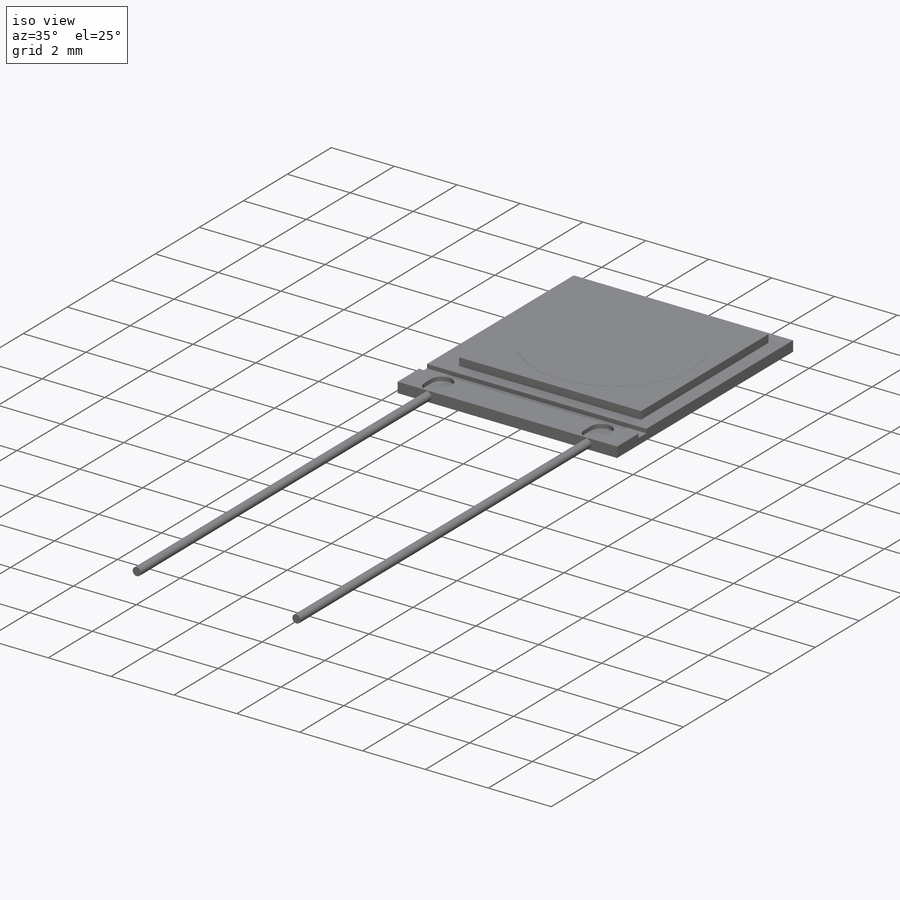
[diagram: iso view]
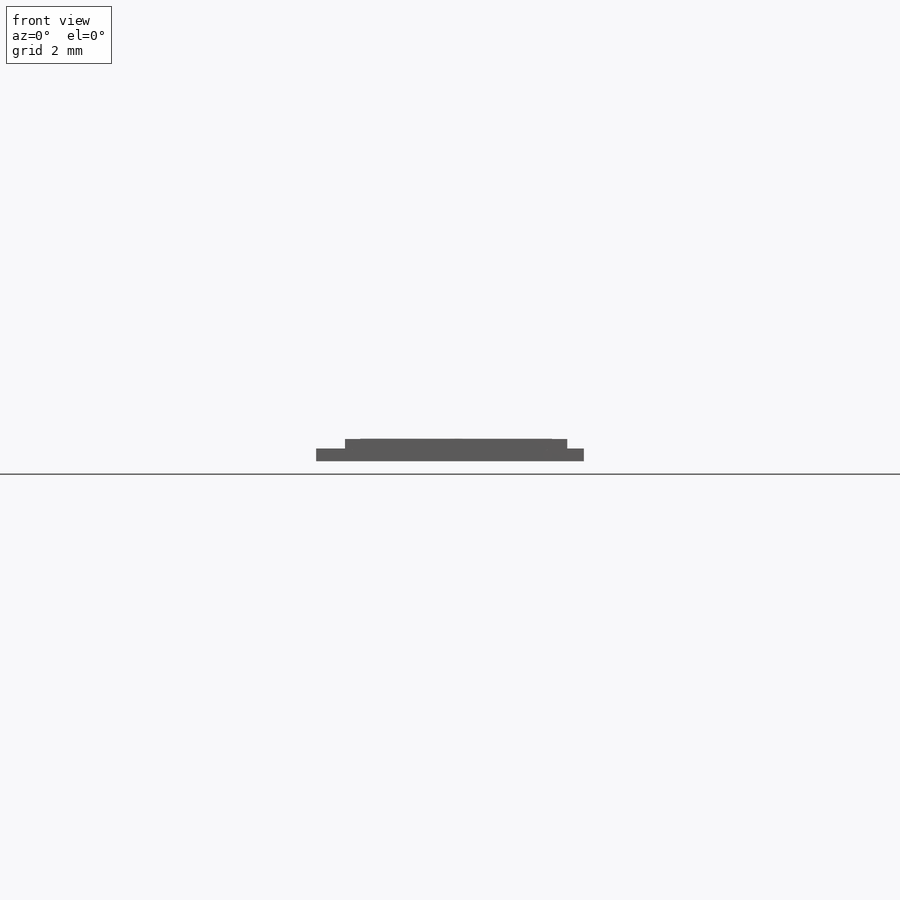
[diagram: front view]
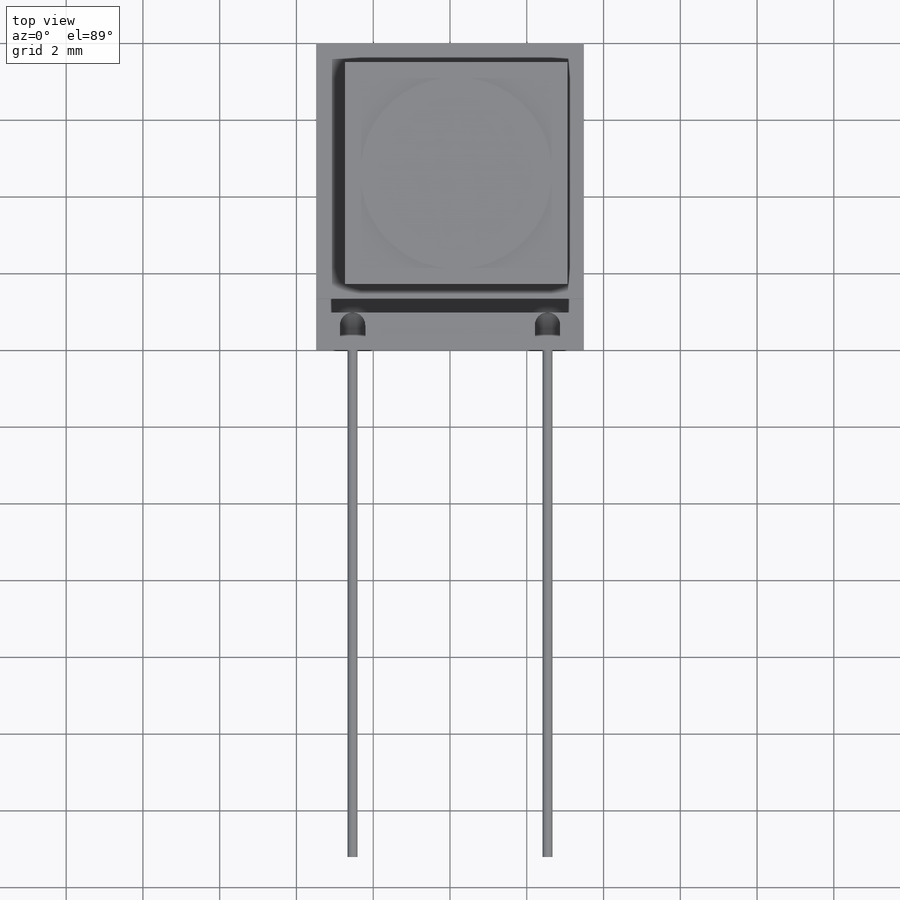
[diagram: top view]
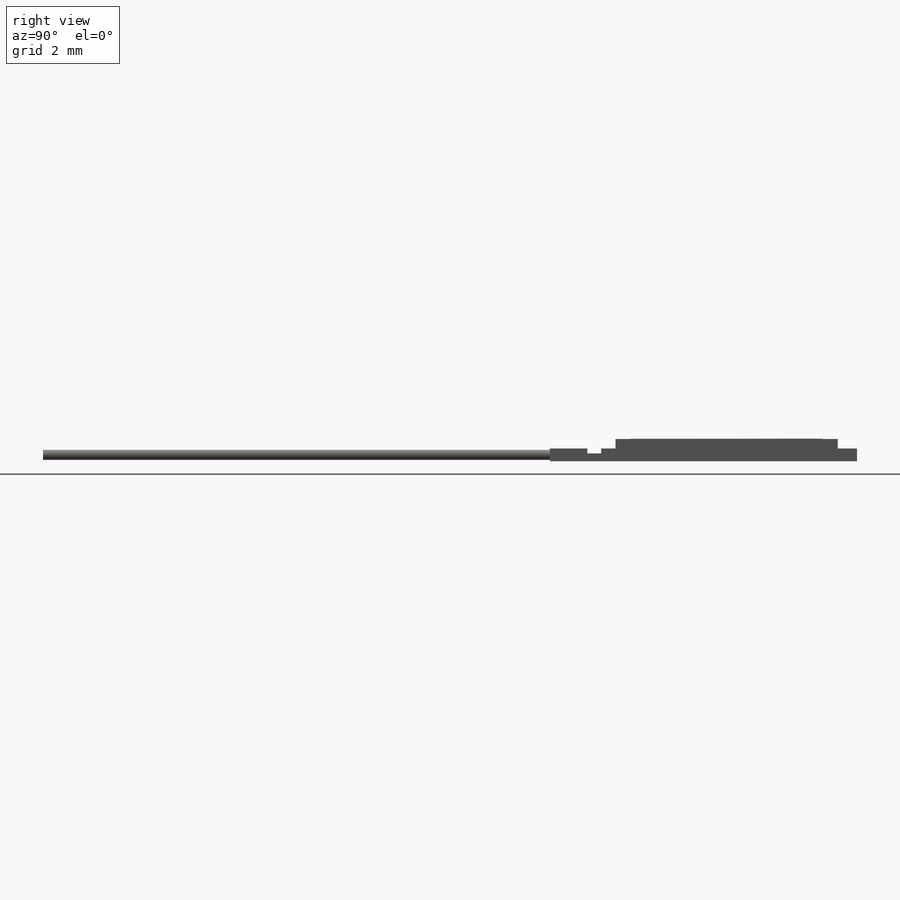
[diagram: right view]
SOLIDWORKS PART (.sldprt)
format: sldprt  version: not decoded by parser v0  size: 266,240 bytes
history: native  units: mm
features: sketch x5, extrude x4, material x1, cut_extrude x1, plane x1 (+11 scaffold rows collapsed)
feature tree (23):
  scaffold x11  (default folders/planes/origin — collapsed)
  material  "Material <not specified>"
  sketch  "Sketch1"  dims[D1=6.98mm D2=8.0mm]
  extrude  "Boss-Extrude1"  Depth=0.3302mm
  sketch  "Sketch2"  dims[c1.D5=5.05mm c1.D4=5.05mm c1.D1=5.79mm c1.D2=5.79mm c1.D3=5.79mm c2.D4=0.889mm c2.D3=3.65mm c3.D4=5.79mm c3.D1=5.79mm c3.D2=5.79mm c3.D3=3.65mm c4.D4=0.89mm c4.D3=3.65mm c4.D5=0.215mm c5.D4=0.5mm]
  extrude  "Boss-Extrude2"  Depth=0.25mm
  sketch  "Sketch3"  dims[c1.D5=~0.179057mm c1.D6=~0.179057mm c1.D4=0.3302mm c1.D1=1.3335mm c1.D2=~0.97536mm c1.D3=2.54mm c2.D4=~0.536205mm c2.D6=~0.358113mm c2.D3=0.6604mm c3.D4=2.54mm c3.D5=~1.277434mm c3.D6=~0.960896mm c4.D5=~0.329579mm c4.D6=~0.646117mm]
  cut_extrude  "Cut-Extrude1"  Depth=0.127mm
  sketch  "Sketch5"  dims[c1.D1=~4.99999mm c1.D2=0.889mm c1.D3=~5.000003mm c1.D4=~10.000005mm c2.D2=3.65mm]
  extrude  "Boss-Extrude4"  Depth=0.255mm
  plane  "Plane2"
  sketch  "Sketch4"  dims[D1=~0.259709mm D2=2.54mm]
  extrude  "Boss-Extrude3"  Depth=13.208mm
decode coverage: 10 of 10 modeling features carry decoded parameters
note: ~ marks probable driven/reference dimensions
note: suppression state not decoded; provenance and decode notes live in map.json
